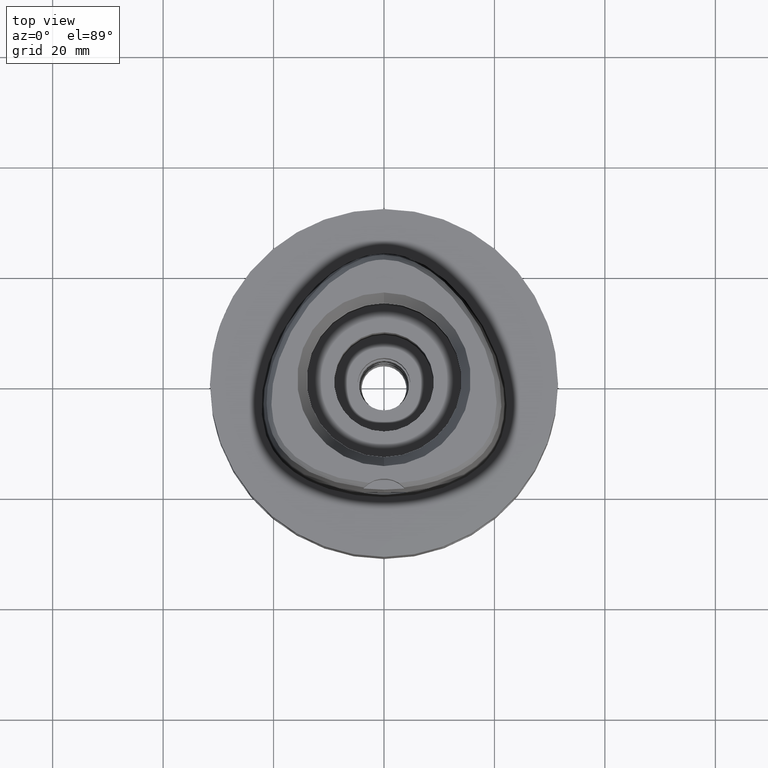
[diagram: clean part render]
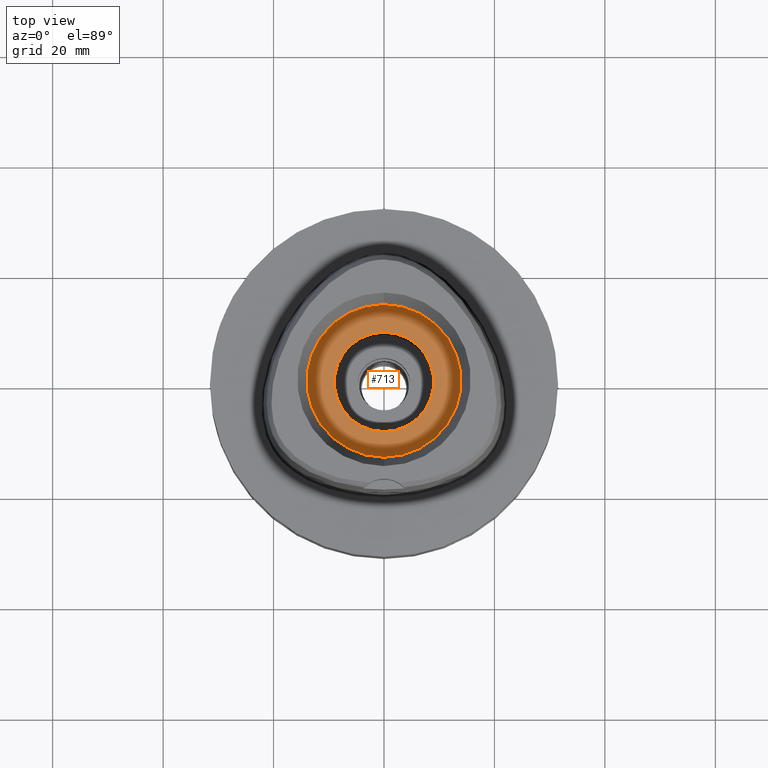
[diagram: same view with one face highlighted and labeled with its STEP entity id]
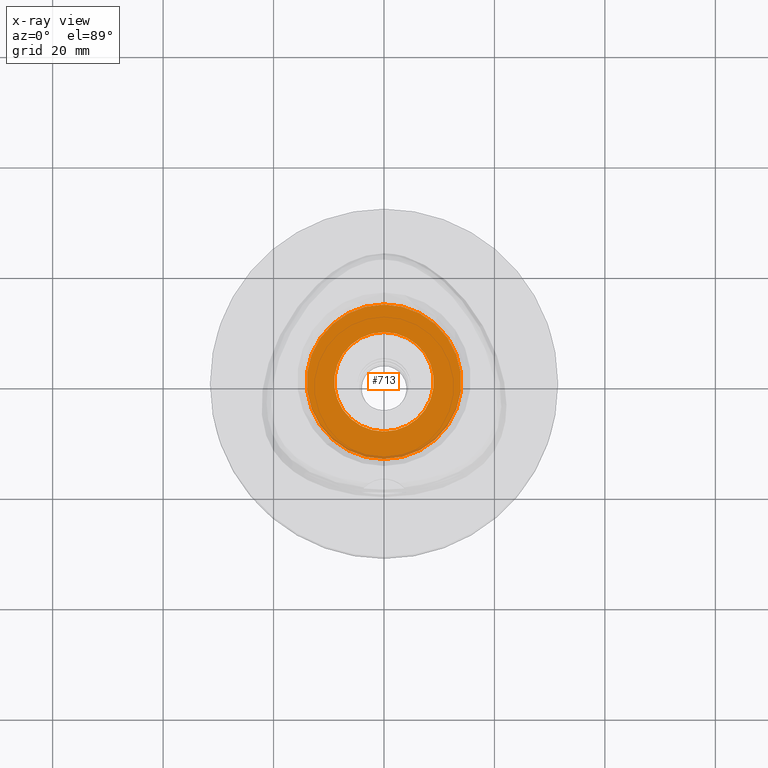
[diagram: x-ray of the same camera — body ghosted, the highlighted face saturated]
A machine part, top view. The second image highlights one B-rep face of the part: STEP entity #713.
The next image is the same camera in x-ray: the body ghosted, the highlighted face saturated — about 3% of this face is hidden behind the body in this view.
In plain terms, the highlighted planar face has unit normal (0, 0, -1).
Its self-contained STEP definition (entity closure, byte-faithful):
#139 = DIRECTION ( 'NONE',  ( 0.0000000000000000000, 0.0000000000000000000, -1.000000000000000000 ) ) ;
#175 = DIRECTION ( 'NONE',  ( 0.0000000000000000000, 0.0000000000000000000, -1.000000000000000000 ) ) ;
#515 = CIRCLE ( 'NONE', #2210, 14.00000000000000000 ) ;
#562 = EDGE_LOOP ( 'NONE', ( #3922, #2887 ) ) ;
#591 = CIRCLE ( 'NONE', #1271, 14.00000000000000000 ) ;
#626 = DIRECTION ( 'NONE',  ( 0.0000000000000000000, 0.0000000000000000000, 1.000000000000000000 ) ) ;
#681 = VERTEX_POINT ( 'NONE', #3864 ) ;
#699 = DIRECTION ( 'NONE',  ( 0.0000000000000000000, -1.000000000000000000, 0.0000000000000000000 ) ) ;
#702 = DIRECTION ( 'NONE',  ( 0.0000000000000000000, 0.0000000000000000000, -1.000000000000000000 ) ) ;
#713 = ADVANCED_FACE ( 'NONE', ( #1216, #2704 ), #3815, .F. ) ;
#867 = CARTESIAN_POINT ( 'NONE',  ( 0.0000000000000000000, 0.0000000000000000000, 11.00000000000000000 ) ) ;
#1067 = VERTEX_POINT ( 'NONE', #3318 ) ;
#1216 = FACE_OUTER_BOUND ( 'NONE', #3989, .T. ) ;
#1271 = AXIS2_PLACEMENT_3D ( 'NONE', #3804, #175, #1916 ) ;
#1749 = CARTESIAN_POINT ( 'NONE',  ( 0.0000000000000000000, 0.0000000000000000000, 11.00000000000000000 ) ) ;
#1916 = DIRECTION ( 'NONE',  ( 0.0000000000000000000, 1.000000000000000000, 0.0000000000000000000 ) ) ;
#2070 = EDGE_CURVE ( 'NONE', #681, #4069, #591, .T. ) ;
#2083 = CARTESIAN_POINT ( 'NONE',  ( 0.0000000000000000000, 0.0000000000000000000, 11.00000000000000000 ) ) ;
#2210 = AXIS2_PLACEMENT_3D ( 'NONE', #4457, #702, #2558 ) ;
#2309 = EDGE_CURVE ( 'NONE', #4069, #681, #515, .T. ) ;
#2558 = DIRECTION ( 'NONE',  ( 0.0000000000000000000, -1.000000000000000000, 0.0000000000000000000 ) ) ;
#2689 = AXIS2_PLACEMENT_3D ( 'NONE', #1749, #4724, #699 ) ;
#2704 = FACE_BOUND ( 'NONE', #562, .T. ) ;
#2813 = CARTESIAN_POINT ( 'NONE',  ( 0.0000000000000000000, 9.000000000000000000, 11.00000000000000000 ) ) ;
#2887 = ORIENTED_EDGE ( 'NONE', *, *, #3102, .F. ) ;
#3102 = EDGE_CURVE ( 'NONE', #4662, #1067, #4388, .T. ) ;
#3201 = AXIS2_PLACEMENT_3D ( 'NONE', #2083, #626, #3526 ) ;
#3318 = CARTESIAN_POINT ( 'NONE',  ( 0.0000000000000000000, -9.000000000000000000, 11.00000000000000000 ) ) ;
#3512 = CARTESIAN_POINT ( 'NONE',  ( 0.0000000000000000000, -14.00000000000000000, 11.00000000000000000 ) ) ;
#3526 = DIRECTION ( 'NONE',  ( 0.0000000000000000000, 1.000000000000000000, 0.0000000000000000000 ) ) ;
#3701 = ORIENTED_EDGE ( 'NONE', *, *, #2070, .F. ) ;
#3804 = CARTESIAN_POINT ( 'NONE',  ( 0.0000000000000000000, 0.0000000000000000000, 11.00000000000000000 ) ) ;
#3815 = PLANE ( 'NONE',  #4253 ) ;
#3837 = DIRECTION ( 'NONE',  ( 0.0000000000000000000, -1.000000000000000000, 0.0000000000000000000 ) ) ;
#3864 = CARTESIAN_POINT ( 'NONE',  ( 0.0000000000000000000, 14.00000000000000000, 11.00000000000000000 ) ) ;
#3922 = ORIENTED_EDGE ( 'NONE', *, *, #4641, .F. ) ;
#3989 = EDGE_LOOP ( 'NONE', ( #4513, #3701 ) ) ;
#4069 = VERTEX_POINT ( 'NONE', #3512 ) ;
#4253 = AXIS2_PLACEMENT_3D ( 'NONE', #867, #139, #3837 ) ;
#4388 = CIRCLE ( 'NONE', #3201, 9.000000000000000000 ) ;
#4457 = CARTESIAN_POINT ( 'NONE',  ( 0.0000000000000000000, 0.0000000000000000000, 11.00000000000000000 ) ) ;
#4479 = CIRCLE ( 'NONE', #2689, 9.000000000000000000 ) ;
#4513 = ORIENTED_EDGE ( 'NONE', *, *, #2309, .F. ) ;
#4641 = EDGE_CURVE ( 'NONE', #1067, #4662, #4479, .T. ) ;
#4662 = VERTEX_POINT ( 'NONE', #2813 ) ;
#4724 = DIRECTION ( 'NONE',  ( 0.0000000000000000000, 0.0000000000000000000, 1.000000000000000000 ) ) ;